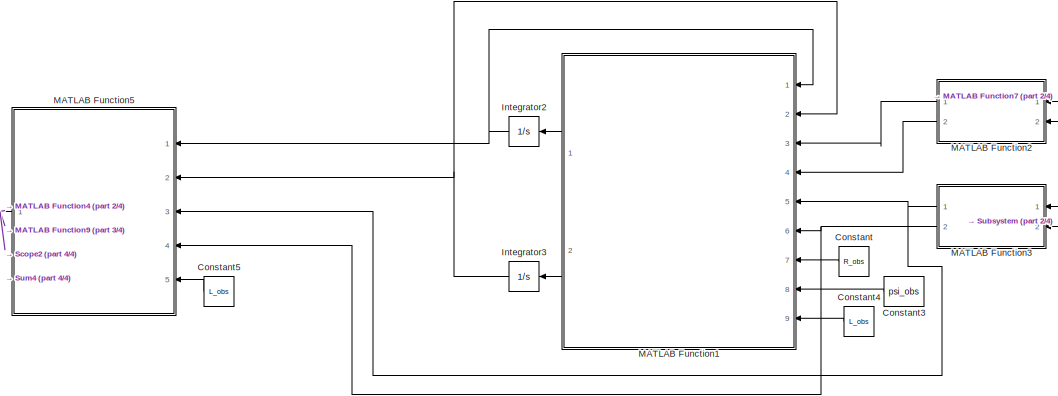
[diagram: root canvas - part 1/4, top center region]
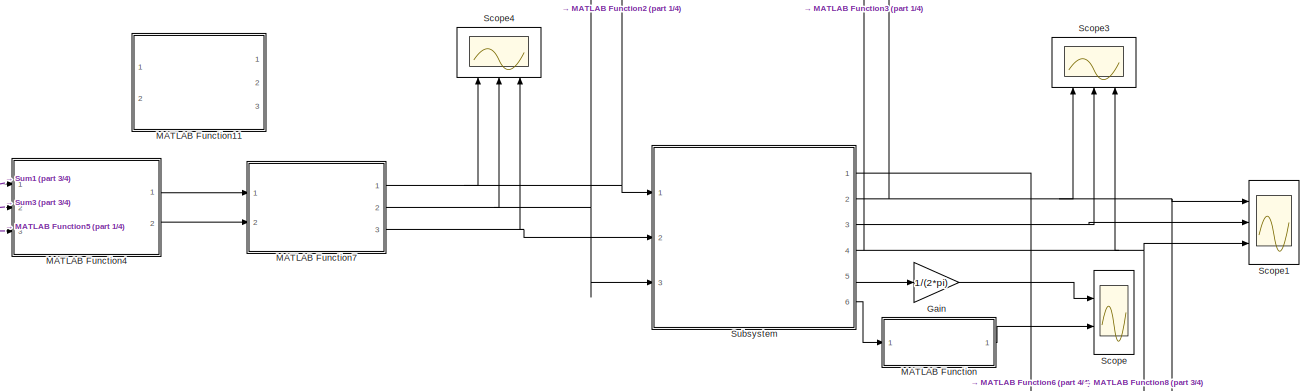
[diagram: root canvas - part 2/4, middle right region]
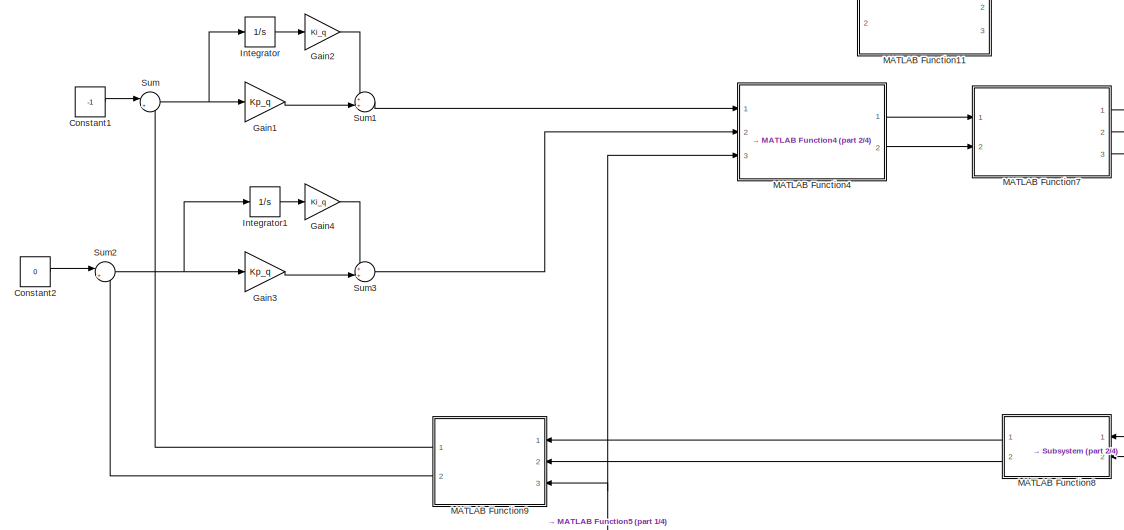
[diagram: root canvas - part 3/4, middle left region]
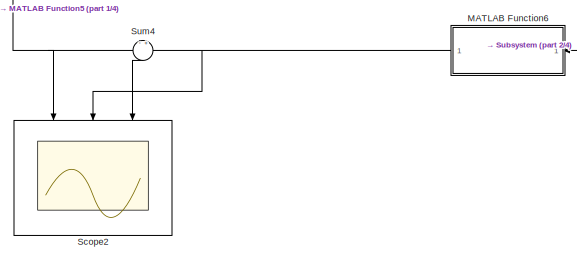
[diagram: root canvas - part 4/4, bottom center region]
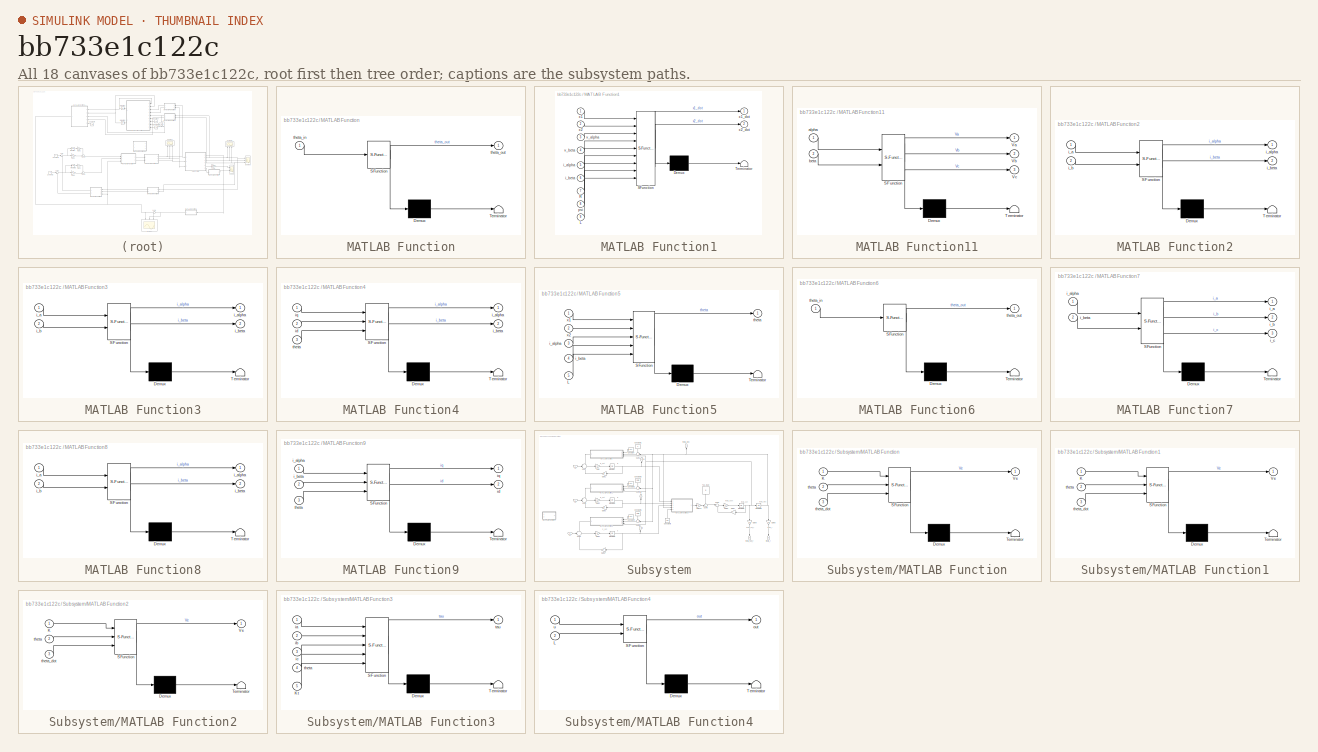
[diagram: thumbnail index - all 18 canvases of the model, root first then tree order]
MODEL slx_bb733e1c122c
KIND model
CONFIG AbsTol = auto
CONFIG FixedStep = auto
CONFIG MaxStep = auto
CONFIG MinStep = auto
CONFIG RelTol = 1e-3
CONFIG SampleTimeConstraint = Unconstrained
CONFIG Solver = VariableStepAuto
CONFIG SolverMode = Auto
CONFIG SolverName = VariableStepAuto
CONFIG StartTime = 0.0
CONFIG StopTime = 1
BLOCK [Constant] Constant
  Value = R_obs
BLOCK [Constant] Constant1
  Value = -1
BLOCK [Constant] Constant2
  Value = 0
BLOCK [Constant] Constant3
  Value = psi_obs
BLOCK [Constant] Constant4
  Value = L_obs
BLOCK [Constant] Constant5
  Value = L_obs
BLOCK [Gain] Gain
  Gain = 1/(2*pi)
  OutDataTypeStr = Inherit: Inherit via internal rule
  ParamDataTypeStr = Inherit: Inherit via internal rule
  SaturateOnIntegerOverflow = off
BLOCK [Gain] Gain1
  Gain = Kp_q
  OutDataTypeStr = Inherit: Inherit via internal rule
  ParamDataTypeStr = Inherit: Inherit via internal rule
  SaturateOnIntegerOverflow = off
BLOCK [Gain] Gain2
  Gain = Ki_q
  OutDataTypeStr = Inherit: Inherit via internal rule
  ParamDataTypeStr = Inherit: Inherit via internal rule
  SaturateOnIntegerOverflow = off
BLOCK [Gain] Gain3
  Gain = Kp_q
  OutDataTypeStr = Inherit: Inherit via internal rule
  ParamDataTypeStr = Inherit: Inherit via internal rule
  SaturateOnIntegerOverflow = off
BLOCK [Gain] Gain4
  Gain = Ki_q
  OutDataTypeStr = Inherit: Inherit via internal rule
  ParamDataTypeStr = Inherit: Inherit via internal rule
  SaturateOnIntegerOverflow = off
BLOCK [Integrator] Integrator
  Ports = [1, 1]
BLOCK [Integrator] Integrator1
  Ports = [1, 1]
BLOCK [Integrator] Integrator2
  Ports = [1, 1]
BLOCK [Integrator] Integrator3
  Ports = [1, 1]
BLOCK [SubSystem] MATLAB Function
  ErrorFcn = Stateflow.Translate.translate
  PermitHierarchicalResolution = ExplicitOnly
  Ports = [1, 1]
  RequestExecContextInheritance = off
  SFBlockType = MATLAB Function
  TreatAsAtomicUnit = on
  Variant = off
BLOCK [Demux] MATLAB Function/ Demux 
  Outputs = 1
  Ports = [1, 1]
BLOCK [S-Function] MATLAB Function/ SFunction 
  EnableBusSupport = on
  FunctionName = sf_sfun
  PortCounts = [1 2]
  Ports = [1, 2]
  SFunctionDeploymentMode = off
  Tag = Stateflow S-Function dynamic_sim_II 6
BLOCK [Terminator] MATLAB Function/ Terminator 
BLOCK [Inport] MATLAB Function/theta_in
  IconDisplay = Port number
BLOCK [Outport] MATLAB Function/theta_out
  IconDisplay = Port number
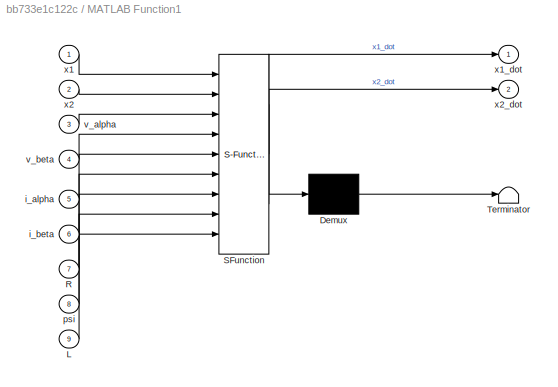
BLOCK [SubSystem] MATLAB Function1
  ErrorFcn = Stateflow.Translate.translate
  PermitHierarchicalResolution = ExplicitOnly
  Ports = [9, 2]
  RequestExecContextInheritance = off
  SFBlockType = MATLAB Function
  TreatAsAtomicUnit = on
  Variant = off
BLOCK [Demux] MATLAB Function1/ Demux 
  Outputs = 1
  Ports = [1, 1]
BLOCK [S-Function] MATLAB Function1/ SFunction 
  EnableBusSupport = on
  FunctionName = sf_sfun
  PortCounts = [9 3]
  Ports = [9, 3]
  SFunctionDeploymentMode = off
  Tag = Stateflow S-Function dynamic_sim_II 7
BLOCK [Terminator] MATLAB Function1/ Terminator 
BLOCK [Inport] MATLAB Function1/L
  IconDisplay = Port number
  Port = 9
BLOCK [Inport] MATLAB Function1/R
  IconDisplay = Port number
  Port = 7
BLOCK [Inport] MATLAB Function1/i_alpha
  IconDisplay = Port number
  Port = 5
BLOCK [Inport] MATLAB Function1/i_beta
  IconDisplay = Port number
  Port = 6
BLOCK [Inport] MATLAB Function1/psi
  IconDisplay = Port number
  Port = 8
BLOCK [Inport] MATLAB Function1/v_alpha
  IconDisplay = Port number
  Port = 3
BLOCK [Inport] MATLAB Function1/v_beta
  IconDisplay = Port number
  Port = 4
BLOCK [Inport] MATLAB Function1/x1
  IconDisplay = Port number
BLOCK [Outport] MATLAB Function1/x1_dot
  IconDisplay = Port number
BLOCK [Inport] MATLAB Function1/x2
  IconDisplay = Port number
  Port = 2
BLOCK [Outport] MATLAB Function1/x2_dot
  IconDisplay = Port number
  Port = 2
BLOCK [SubSystem] MATLAB Function11
  Commented = on
  ErrorFcn = Stateflow.Translate.translate
  PermitHierarchicalResolution = ExplicitOnly
  Ports = [2, 3]
  RequestExecContextInheritance = off
  SFBlockType = MATLAB Function
  TreatAsAtomicUnit = on
  Variant = off
BLOCK [Demux] MATLAB Function11/ Demux 
  Outputs = 1
  Ports = [1, 1]
BLOCK [S-Function] MATLAB Function11/ SFunction 
  EnableBusSupport = on
  FunctionName = sf_sfun
  PortCounts = [2 4]
  Ports = [2, 4]
  SFunctionDeploymentMode = off
  Tag = Stateflow S-Function dynamic_sim_II 16
BLOCK [Terminator] MATLAB Function11/ Terminator 
BLOCK [Outport] MATLAB Function11/Va
  IconDisplay = Port number
BLOCK [Outport] MATLAB Function11/Vb
  IconDisplay = Port number
  Port = 2
BLOCK [Outport] MATLAB Function11/Vc
  IconDisplay = Port number
  Port = 3
BLOCK [Inport] MATLAB Function11/alpha
  IconDisplay = Port number
BLOCK [Inport] MATLAB Function11/beta
  IconDisplay = Port number
  Port = 2
BLOCK [SubSystem] MATLAB Function2
  ErrorFcn = Stateflow.Translate.translate
  PermitHierarchicalResolution = ExplicitOnly
  Ports = [2, 2]
  RequestExecContextInheritance = off
  SFBlockType = MATLAB Function
  TreatAsAtomicUnit = on
  Variant = off
BLOCK [Demux] MATLAB Function2/ Demux 
  Outputs = 1
  Ports = [1, 1]
BLOCK [S-Function] MATLAB Function2/ SFunction 
  EnableBusSupport = on
  FunctionName = sf_sfun
  PortCounts = [2 3]
  Ports = [2, 3]
  SFunctionDeploymentMode = off
  Tag = Stateflow S-Function dynamic_sim_II 11
BLOCK [Terminator] MATLAB Function2/ Terminator 
BLOCK [Inport] MATLAB Function2/i_a
  IconDisplay = Port number
BLOCK [Outport] MATLAB Function2/i_alpha
  IconDisplay = Port number
BLOCK [Inport] MATLAB Function2/i_b
  IconDisplay = Port number
  Port = 2
BLOCK [Outport] MATLAB Function2/i_beta
  IconDisplay = Port number
  Port = 2
BLOCK [SubSystem] MATLAB Function3
  ErrorFcn = Stateflow.Translate.translate
  PermitHierarchicalResolution = ExplicitOnly
  Ports = [2, 2]
  RequestExecContextInheritance = off
  SFBlockType = MATLAB Function
  TreatAsAtomicUnit = on
  Variant = off
BLOCK [Demux] MATLAB Function3/ Demux 
  Outputs = 1
  Ports = [1, 1]
BLOCK [S-Function] MATLAB Function3/ SFunction 
  EnableBusSupport = on
  FunctionName = sf_sfun
  PortCounts = [2 3]
  Ports = [2, 3]
  SFunctionDeploymentMode = off
  Tag = Stateflow S-Function dynamic_sim_II 12
BLOCK [Terminator] MATLAB Function3/ Terminator 
BLOCK [Inport] MATLAB Function3/i_a
  IconDisplay = Port number
BLOCK [Outport] MATLAB Function3/i_alpha
  IconDisplay = Port number
BLOCK [Inport] MATLAB Function3/i_b
  IconDisplay = Port number
  Port = 2
BLOCK [Outport] MATLAB Function3/i_beta
  IconDisplay = Port number
  Port = 2
BLOCK [SubSystem] MATLAB Function4
  ErrorFcn = Stateflow.Translate.translate
  PermitHierarchicalResolution = ExplicitOnly
  Ports = [3, 2]
  RequestExecContextInheritance = off
  SFBlockType = MATLAB Function
  TreatAsAtomicUnit = on
  Variant = off
BLOCK [Demux] MATLAB Function4/ Demux 
  Outputs = 1
  Ports = [1, 1]
BLOCK [S-Function] MATLAB Function4/ SFunction 
  EnableBusSupport = on
  FunctionName = sf_sfun
  PortCounts = [3 3]
  Ports = [3, 3]
  SFunctionDeploymentMode = off
  Tag = Stateflow S-Function dynamic_sim_II 5
BLOCK [Terminator] MATLAB Function4/ Terminator 
BLOCK [Outport] MATLAB Function4/i_alpha
  IconDisplay = Port number
BLOCK [Outport] MATLAB Function4/i_beta
  IconDisplay = Port number
  Port = 2
BLOCK [Inport] MATLAB Function4/id
  IconDisplay = Port number
  Port = 2
BLOCK [Inport] MATLAB Function4/iq
  IconDisplay = Port number
BLOCK [Inport] MATLAB Function4/theta
  IconDisplay = Port number
  Port = 3
BLOCK [SubSystem] MATLAB Function5
  ErrorFcn = Stateflow.Translate.translate
  PermitHierarchicalResolution = ExplicitOnly
  Ports = [5, 1]
  RequestExecContextInheritance = off
  SFBlockType = MATLAB Function
  TreatAsAtomicUnit = on
  Variant = off
BLOCK [Demux] MATLAB Function5/ Demux 
  Outputs = 1
  Ports = [1, 1]
BLOCK [S-Function] MATLAB Function5/ SFunction 
  EnableBusSupport = on
  FunctionName = sf_sfun
  PortCounts = [5 2]
  Ports = [5, 2]
  SFunctionDeploymentMode = off
  Tag = Stateflow S-Function dynamic_sim_II 13
BLOCK [Terminator] MATLAB Function5/ Terminator 
BLOCK [Inport] MATLAB Function5/L
  IconDisplay = Port number
  Port = 5
BLOCK [Inport] MATLAB Function5/i_alpha
  IconDisplay = Port number
  Port = 3
BLOCK [Inport] MATLAB Function5/i_beta
  IconDisplay = Port number
  Port = 4
BLOCK [Outport] MATLAB Function5/theta
  IconDisplay = Port number
BLOCK [Inport] MATLAB Function5/x1
  IconDisplay = Port number
BLOCK [Inport] MATLAB Function5/x2
  IconDisplay = Port number
  Port = 2
BLOCK [SubSystem] MATLAB Function6
  ErrorFcn = Stateflow.Translate.translate
  PermitHierarchicalResolution = ExplicitOnly
  Ports = [1, 1]
  RequestExecContextInheritance = off
  SFBlockType = MATLAB Function
  TreatAsAtomicUnit = on
  Variant = off
BLOCK [Demux] MATLAB Function6/ Demux 
  Outputs = 1
  Ports = [1, 1]
BLOCK [S-Function] MATLAB Function6/ SFunction 
  EnableBusSupport = on
  FunctionName = sf_sfun
  PortCounts = [1 2]
  Ports = [1, 2]
  SFunctionDeploymentMode = off
  Tag = Stateflow S-Function dynamic_sim_II 14
BLOCK [Terminator] MATLAB Function6/ Terminator 
BLOCK [Inport] MATLAB Function6/theta_in
  IconDisplay = Port number
BLOCK [Outport] MATLAB Function6/theta_out
  IconDisplay = Port number
BLOCK [SubSystem] MATLAB Function7
  ErrorFcn = Stateflow.Translate.translate
  PermitHierarchicalResolution = ExplicitOnly
  Ports = [2, 3]
  RequestExecContextInheritance = off
  SFBlockType = MATLAB Function
  TreatAsAtomicUnit = on
  Variant = off
BLOCK [Demux] MATLAB Function7/ Demux 
  Outputs = 1
  Ports = [1, 1]
BLOCK [S-Function] MATLAB Function7/ SFunction 
  EnableBusSupport = on
  FunctionName = sf_sfun
  PortCounts = [2 4]
  Ports = [2, 4]
  SFunctionDeploymentMode = off
  Tag = Stateflow S-Function dynamic_sim_II 8
BLOCK [Terminator] MATLAB Function7/ Terminator 
BLOCK [Outport] MATLAB Function7/i_a
  IconDisplay = Port number
BLOCK [Inport] MATLAB Function7/i_alpha
  IconDisplay = Port number
BLOCK [Outport] MATLAB Function7/i_b
  IconDisplay = Port number
  Port = 2
BLOCK [Inport] MATLAB Function7/i_beta
  IconDisplay = Port number
  Port = 2
BLOCK [Outport] MATLAB Function7/i_c
  IconDisplay = Port number
  Port = 3
BLOCK [SubSystem] MATLAB Function8
  ErrorFcn = Stateflow.Translate.translate
  PermitHierarchicalResolution = ExplicitOnly
  Ports = [2, 2]
  RequestExecContextInheritance = off
  SFBlockType = MATLAB Function
  TreatAsAtomicUnit = on
  Variant = off
BLOCK [Demux] MATLAB Function8/ Demux 
  Outputs = 1
  Ports = [1, 1]
BLOCK [S-Function] MATLAB Function8/ SFunction 
  EnableBusSupport = on
  FunctionName = sf_sfun
  PortCounts = [2 3]
  Ports = [2, 3]
  SFunctionDeploymentMode = off
  Tag = Stateflow S-Function dynamic_sim_II 9
BLOCK [Terminator] MATLAB Function8/ Terminator 
BLOCK [Inport] MATLAB Function8/i_a
  IconDisplay = Port number
BLOCK [Outport] MATLAB Function8/i_alpha
  IconDisplay = Port number
BLOCK [Inport] MATLAB Function8/i_b
  IconDisplay = Port number
  Port = 2
BLOCK [Outport] MATLAB Function8/i_beta
  IconDisplay = Port number
  Port = 2
BLOCK [SubSystem] MATLAB Function9
  ErrorFcn = Stateflow.Translate.translate
  PermitHierarchicalResolution = ExplicitOnly
  Ports = [3, 2]
  RequestExecContextInheritance = off
  SFBlockType = MATLAB Function
  TreatAsAtomicUnit = on
  Variant = off
BLOCK [Demux] MATLAB Function9/ Demux 
  Outputs = 1
  Ports = [1, 1]
BLOCK [S-Function] MATLAB Function9/ SFunction 
  EnableBusSupport = on
  FunctionName = sf_sfun
  PortCounts = [3 3]
  Ports = [3, 3]
  SFunctionDeploymentMode = off
  Tag = Stateflow S-Function dynamic_sim_II 10
BLOCK [Terminator] MATLAB Function9/ Terminator 
BLOCK [Inport] MATLAB Function9/i_alpha
  IconDisplay = Port number
BLOCK [Inport] MATLAB Function9/i_beta
  IconDisplay = Port number
  Port = 2
BLOCK [Outport] MATLAB Function9/id
  IconDisplay = Port number
  Port = 2
BLOCK [Outport] MATLAB Function9/iq
  IconDisplay = Port number
BLOCK [Inport] MATLAB Function9/theta
  IconDisplay = Port number
  Port = 3
BLOCK [Scope] Scope
  NumInputPorts = 2
  Ports = [2]
  ScopeSpecificationString = Simulink.scopes.TimeScopeBlockCfg('CurrentConfiguration', extmgr.ConfigurationSet(extmgr.Configuration('Core','General UI',true),extmgr.Configuration('Core','Source UI',true),extmgr.Configuration('Sources','WiredSimulink',true),extmgr.Configuration('Visuals','Time Domain',true,'SerializedDisplays',{struct('MinYLimReal','-1003.5179','MaxYLimReal','1842.5715','YLabelReal','','MinYLimMag','  0.00000'...<+1465ch>
BLOCK [Scope] Scope1
  NumInputPorts = 3
  Ports = [3]
  ScopeSpecificationString = Simulink.scopes.TimeScopeBlockCfg('CurrentConfiguration', extmgr.ConfigurationSet(extmgr.Configuration('Core','General UI',true),extmgr.Configuration('Core','Source UI',true),extmgr.Configuration('Sources','WiredSimulink',true,'DataLoggingVariableName','ScopeData1'),extmgr.Configuration('Visuals','Time Domain',true,'SerializedDisplays',{struct('MinYLimReal','-5.67931','MaxYLimReal','5.52953','YLab...<+1476ch>
BLOCK [Scope] Scope2
  NumInputPorts = 3
  Ports = [3]
  ScopeSpecificationString = Simulink.scopes.TimeScopeBlockCfg('CurrentConfiguration', extmgr.ConfigurationSet(extmgr.Configuration('Core','General UI',true),extmgr.Configuration('Core','Source UI',true),extmgr.Configuration('Sources','WiredSimulink',true,'DataLoggingVariableName','ScopeData2'),extmgr.Configuration('Visuals','Time Domain',true,'SerializedDisplays',{struct('MinYLimReal','-4.47606','MaxYLimReal','3.61394','YLab...<+1508ch>
BLOCK [Scope] Scope3
  NumInputPorts = 3
  Ports = [3]
  ScopeSpecificationString = Simulink.scopes.TimeScopeBlockCfg('CurrentConfiguration', extmgr.ConfigurationSet(extmgr.Configuration('Core','General UI',true),extmgr.Configuration('Core','Source UI',true),extmgr.Configuration('Sources','WiredSimulink',true,'DataLoggingVariableName','ScopeData1'),extmgr.Configuration('Visuals','Time Domain',true,'SerializedDisplays',{struct('MinYLimReal','-1.26065','MaxYLimReal','7.53281','YLab...<+1470ch>
BLOCK [Scope] Scope4
  NumInputPorts = 3
  Ports = [3]
  ScopeSpecificationString = Simulink.scopes.TimeScopeBlockCfg('CurrentConfiguration', extmgr.ConfigurationSet(extmgr.Configuration('Core','General UI',true),extmgr.Configuration('Core','Source UI',true),extmgr.Configuration('Sources','WiredSimulink',true,'DataLoggingVariableName','ScopeData2'),extmgr.Configuration('Visuals','Time Domain',true,'SerializedDisplays',{struct('MinYLimReal','-1.37841','MaxYLimReal','9.04704','YLab...<+1524ch>
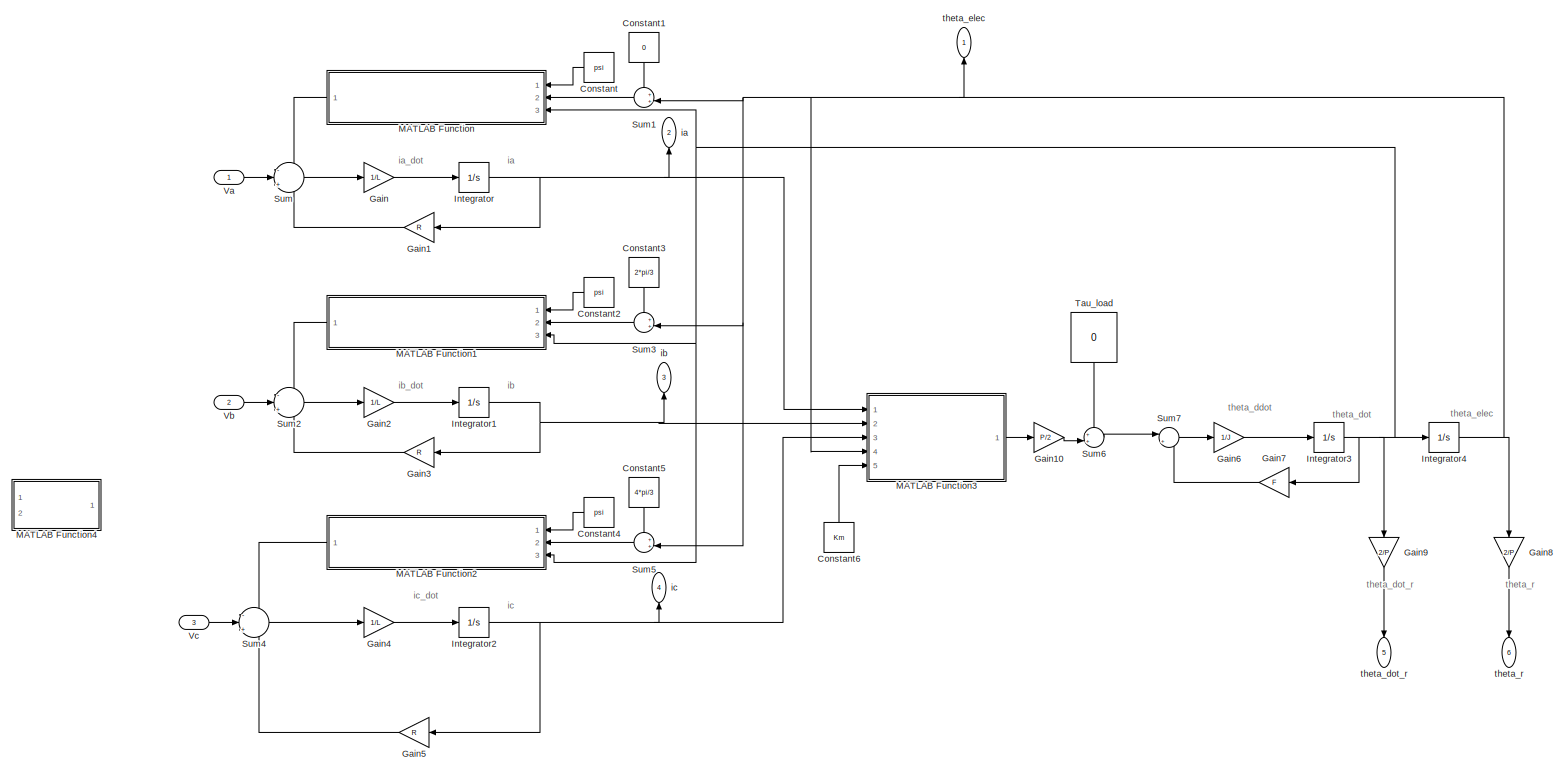
[diagram: Subsystem - part 1/1, most of the canvas]
BLOCK [SubSystem] Subsystem
  Ports = [3, 6]
  RequestExecContextInheritance = off
  Variant = off
BLOCK [Outport] Subsystem/ theta_elec 
  IconDisplay = Port number
BLOCK [Constant] Subsystem/Constant
  Value = psi
BLOCK [Constant] Subsystem/Constant1
  Value = 0
BLOCK [Constant] Subsystem/Constant2
  Value = psi
BLOCK [Constant] Subsystem/Constant3
  Value = 2*pi/3
BLOCK [Constant] Subsystem/Constant4
  Value = psi
BLOCK [Constant] Subsystem/Constant5
  Value = 4*pi/3
BLOCK [Constant] Subsystem/Constant6
  Value = Km
BLOCK [Gain] Subsystem/Gain
  Gain = 1/L
  OutDataTypeStr = Inherit: Inherit via internal rule
  ParamDataTypeStr = Inherit: Inherit via internal rule
  SaturateOnIntegerOverflow = off
BLOCK [Gain] Subsystem/Gain1
  Gain = R
  OutDataTypeStr = Inherit: Inherit via internal rule
  ParamDataTypeStr = Inherit: Inherit via internal rule
  SaturateOnIntegerOverflow = off
BLOCK [Gain] Subsystem/Gain10
  Gain = P/2
  OutDataTypeStr = Inherit: Inherit via internal rule
  ParamDataTypeStr = Inherit: Inherit via internal rule
  SaturateOnIntegerOverflow = off
BLOCK [Gain] Subsystem/Gain2
  Gain = 1/L
  OutDataTypeStr = Inherit: Inherit via internal rule
  ParamDataTypeStr = Inherit: Inherit via internal rule
  SaturateOnIntegerOverflow = off
BLOCK [Gain] Subsystem/Gain3
  Gain = R
  OutDataTypeStr = Inherit: Inherit via internal rule
  ParamDataTypeStr = Inherit: Inherit via internal rule
  SaturateOnIntegerOverflow = off
BLOCK [Gain] Subsystem/Gain4
  Gain = 1/L
  OutDataTypeStr = Inherit: Inherit via internal rule
  ParamDataTypeStr = Inherit: Inherit via internal rule
  SaturateOnIntegerOverflow = off
BLOCK [Gain] Subsystem/Gain5
  Gain = R
  OutDataTypeStr = Inherit: Inherit via internal rule
  ParamDataTypeStr = Inherit: Inherit via internal rule
  SaturateOnIntegerOverflow = off
BLOCK [Gain] Subsystem/Gain6
  Gain = 1/J
  OutDataTypeStr = Inherit: Inherit via internal rule
  ParamDataTypeStr = Inherit: Inherit via internal rule
  SaturateOnIntegerOverflow = off
BLOCK [Gain] Subsystem/Gain7
  Gain = F
  OutDataTypeStr = Inherit: Inherit via internal rule
  ParamDataTypeStr = Inherit: Inherit via internal rule
  SaturateOnIntegerOverflow = off
BLOCK [Gain] Subsystem/Gain8
  Gain = 2/P
  OutDataTypeStr = Inherit: Inherit via internal rule
  ParamDataTypeStr = Inherit: Inherit via internal rule
  SaturateOnIntegerOverflow = off
BLOCK [Gain] Subsystem/Gain9
  Gain = 2/P
  OutDataTypeStr = Inherit: Inherit via internal rule
  ParamDataTypeStr = Inherit: Inherit via internal rule
  SaturateOnIntegerOverflow = off
BLOCK [Integrator] Subsystem/Integrator
  Ports = [1, 1]
BLOCK [Integrator] Subsystem/Integrator1
  Ports = [1, 1]
BLOCK [Integrator] Subsystem/Integrator2
  Ports = [1, 1]
BLOCK [Integrator] Subsystem/Integrator3
  Ports = [1, 1]
BLOCK [Integrator] Subsystem/Integrator4
  Ports = [1, 1]
BLOCK [SubSystem] Subsystem/MATLAB Function
  ErrorFcn = Stateflow.Translate.translate
  PermitHierarchicalResolution = ExplicitOnly
  Ports = [3, 1]
  RequestExecContextInheritance = off
  SFBlockType = MATLAB Function
  TreatAsAtomicUnit = on
  Variant = off
BLOCK [Demux] Subsystem/MATLAB Function/ Demux 
  Outputs = 1
  Ports = [1, 1]
BLOCK [S-Function] Subsystem/MATLAB Function/ SFunction 
  EnableBusSupport = on
  FunctionName = sf_sfun
  PortCounts = [3 2]
  Ports = [3, 2]
  SFunctionDeploymentMode = off
  Tag = Stateflow S-Function dynamic_sim_II 2
BLOCK [Terminator] Subsystem/MATLAB Function/ Terminator 
BLOCK [Inport] Subsystem/MATLAB Function/K
  IconDisplay = Port number
BLOCK [Outport] Subsystem/MATLAB Function/Ve
  IconDisplay = Port number
BLOCK [Inport] Subsystem/MATLAB Function/theta
  IconDisplay = Port number
  Port = 2
BLOCK [Inport] Subsystem/MATLAB Function/theta_dot
  IconDisplay = Port number
  Port = 3
BLOCK [SubSystem] Subsystem/MATLAB Function1
  ErrorFcn = Stateflow.Translate.translate
  PermitHierarchicalResolution = ExplicitOnly
  Ports = [3, 1]
  RequestExecContextInheritance = off
  SFBlockType = MATLAB Function
  TreatAsAtomicUnit = on
  Variant = off
BLOCK [Demux] Subsystem/MATLAB Function1/ Demux 
  Outputs = 1
  Ports = [1, 1]
BLOCK [S-Function] Subsystem/MATLAB Function1/ SFunction 
  EnableBusSupport = on
  FunctionName = sf_sfun
  PortCounts = [3 2]
  Ports = [3, 2]
  SFunctionDeploymentMode = off
  Tag = Stateflow S-Function dynamic_sim_II 1
BLOCK [Terminator] Subsystem/MATLAB Function1/ Terminator 
BLOCK [Inport] Subsystem/MATLAB Function1/K
  IconDisplay = Port number
BLOCK [Outport] Subsystem/MATLAB Function1/Ve
  IconDisplay = Port number
BLOCK [Inport] Subsystem/MATLAB Function1/theta
  IconDisplay = Port number
  Port = 2
BLOCK [Inport] Subsystem/MATLAB Function1/theta_dot
  IconDisplay = Port number
  Port = 3
BLOCK [SubSystem] Subsystem/MATLAB Function2
  ErrorFcn = Stateflow.Translate.translate
  PermitHierarchicalResolution = ExplicitOnly
  Ports = [3, 1]
  RequestExecContextInheritance = off
  SFBlockType = MATLAB Function
  TreatAsAtomicUnit = on
  Variant = off
BLOCK [Demux] Subsystem/MATLAB Function2/ Demux 
  Outputs = 1
  Ports = [1, 1]
BLOCK [S-Function] Subsystem/MATLAB Function2/ SFunction 
  EnableBusSupport = on
  FunctionName = sf_sfun
  PortCounts = [3 2]
  Ports = [3, 2]
  SFunctionDeploymentMode = off
  Tag = Stateflow S-Function dynamic_sim_II 3
BLOCK [Terminator] Subsystem/MATLAB Function2/ Terminator 
BLOCK [Inport] Subsystem/MATLAB Function2/K
  IconDisplay = Port number
BLOCK [Outport] Subsystem/MATLAB Function2/Ve
  IconDisplay = Port number
BLOCK [Inport] Subsystem/MATLAB Function2/theta
  IconDisplay = Port number
  Port = 2
BLOCK [Inport] Subsystem/MATLAB Function2/theta_dot
  IconDisplay = Port number
  Port = 3
BLOCK [SubSystem] Subsystem/MATLAB Function3
  ErrorFcn = Stateflow.Translate.translate
  PermitHierarchicalResolution = ExplicitOnly
  Ports = [5, 1]
  RequestExecContextInheritance = off
  SFBlockType = MATLAB Function
  TreatAsAtomicUnit = on
  Variant = off
BLOCK [Demux] Subsystem/MATLAB Function3/ Demux 
  Outputs = 1
  Ports = [1, 1]
BLOCK [S-Function] Subsystem/MATLAB Function3/ SFunction 
  EnableBusSupport = on
  FunctionName = sf_sfun
  PortCounts = [5 2]
  Ports = [5, 2]
  SFunctionDeploymentMode = off
  Tag = Stateflow S-Function dynamic_sim_II 4
BLOCK [Terminator] Subsystem/MATLAB Function3/ Terminator 
BLOCK [Inport] Subsystem/MATLAB Function3/Kt
  IconDisplay = Port number
  Port = 5
BLOCK [Inport] Subsystem/MATLAB Function3/ia
  IconDisplay = Port number
BLOCK [Inport] Subsystem/MATLAB Function3/ib
  IconDisplay = Port number
  Port = 2
BLOCK [Inport] Subsystem/MATLAB Function3/ic
  IconDisplay = Port number
  Port = 3
BLOCK [Outport] Subsystem/MATLAB Function3/tau
  IconDisplay = Port number
BLOCK [Inport] Subsystem/MATLAB Function3/theta
  IconDisplay = Port number
  Port = 4
BLOCK [SubSystem] Subsystem/MATLAB Function4
  Commented = on
  ErrorFcn = Stateflow.Translate.translate
  PermitHierarchicalResolution = ExplicitOnly
  Ports = [2, 1]
  RequestExecContextInheritance = off
  SFBlockType = MATLAB Function
  TreatAsAtomicUnit = on
  Variant = off
BLOCK [Demux] Subsystem/MATLAB Function4/ Demux 
  Outputs = 1
  Ports = [1, 1]
BLOCK [S-Function] Subsystem/MATLAB Function4/ SFunction 
  EnableBusSupport = on
  FunctionName = sf_sfun
  PortCounts = [2 2]
  Ports = [2, 2]
  SFunctionDeploymentMode = off
  Tag = Stateflow S-Function dynamic_sim_II 15
BLOCK [Terminator] Subsystem/MATLAB Function4/ Terminator 
BLOCK [Inport] Subsystem/MATLAB Function4/L
  IconDisplay = Port number
  Port = 2
BLOCK [Outport] Subsystem/MATLAB Function4/out
  IconDisplay = Port number
BLOCK [Inport] Subsystem/MATLAB Function4/u
  IconDisplay = Port number
BLOCK [Sum] Subsystem/Sum
  IconShape = round
  InputSameDT = off
  Inputs = -|+|-
  OutDataTypeStr = Inherit: Inherit via internal rule
  Ports = [3, 1]
  SaturateOnIntegerOverflow = off
BLOCK [Sum] Subsystem/Sum1
  IconShape = round
  InputSameDT = off
  Inputs = ++|
  OutDataTypeStr = Inherit: Inherit via internal rule
  Ports = [2, 1]
  SaturateOnIntegerOverflow = off
BLOCK [Sum] Subsystem/Sum2
  IconShape = round
  InputSameDT = off
  Inputs = -|+|-
  OutDataTypeStr = Inherit: Inherit via internal rule
  Ports = [3, 1]
  SaturateOnIntegerOverflow = off
BLOCK [Sum] Subsystem/Sum3
  IconShape = round
  InputSameDT = off
  Inputs = ++|
  OutDataTypeStr = Inherit: Inherit via internal rule
  Ports = [2, 1]
  SaturateOnIntegerOverflow = off
BLOCK [Sum] Subsystem/Sum4
  IconShape = round
  InputSameDT = off
  Inputs = -|+|-
  OutDataTypeStr = Inherit: Inherit via internal rule
  Ports = [3, 1]
  SaturateOnIntegerOverflow = off
BLOCK [Sum] Subsystem/Sum5
  IconShape = round
  InputSameDT = off
  Inputs = ++|
  OutDataTypeStr = Inherit: Inherit via internal rule
  Ports = [2, 1]
  SaturateOnIntegerOverflow = off
BLOCK [Sum] Subsystem/Sum6
  IconShape = round
  InputSameDT = off
  Inputs = ++|
  OutDataTypeStr = Inherit: Inherit via internal rule
  Ports = [2, 1]
  SaturateOnIntegerOverflow = off
BLOCK [Sum] Subsystem/Sum7
  IconShape = round
  InputSameDT = off
  Inputs = |+-
  OutDataTypeStr = Inherit: Inherit via internal rule
  Ports = [2, 1]
  SaturateOnIntegerOverflow = off
BLOCK [Constant] Subsystem/Tau_load
  Value = 0
BLOCK [Inport] Subsystem/Va 
  IconDisplay = Port number
BLOCK [Inport] Subsystem/Vb
  IconDisplay = Port number
  Port = 2
BLOCK [Inport] Subsystem/Vc
  IconDisplay = Port number
  Port = 3
BLOCK [Outport] Subsystem/ia
  IconDisplay = Port number
  Port = 2
BLOCK [Outport] Subsystem/ib
  IconDisplay = Port number
  Port = 3
BLOCK [Outport] Subsystem/ic
  IconDisplay = Port number
  Port = 4
BLOCK [Outport] Subsystem/theta_dot_r
  IconDisplay = Port number
  Port = 5
BLOCK [Outport] Subsystem/theta_r
  IconDisplay = Port number
  Port = 6
BLOCK [Sum] Sum
  IconShape = round
  InputSameDT = off
  Inputs = |+-
  OutDataTypeStr = Inherit: Inherit via internal rule
  Ports = [2, 1]
  SaturateOnIntegerOverflow = off
BLOCK [Sum] Sum1
  IconShape = round
  InputSameDT = off
  Inputs = ++|
  OutDataTypeStr = Inherit: Inherit via internal rule
  Ports = [2, 1]
  SaturateOnIntegerOverflow = off
BLOCK [Sum] Sum2
  IconShape = round
  InputSameDT = off
  Inputs = |+-
  OutDataTypeStr = Inherit: Inherit via internal rule
  Ports = [2, 1]
  SaturateOnIntegerOverflow = off
BLOCK [Sum] Sum3
  IconShape = round
  InputSameDT = off
  Inputs = ++|
  OutDataTypeStr = Inherit: Inherit via internal rule
  Ports = [2, 1]
  SaturateOnIntegerOverflow = off
BLOCK [Sum] Sum4
  IconShape = round
  InputSameDT = off
  Inputs = -+
  OutDataTypeStr = Inherit: Inherit via internal rule
  Ports = [2, 1]
  SaturateOnIntegerOverflow = off
ANNOTATION Subsystem: ia
ANNOTATION Subsystem: ia_dot
ANNOTATION Subsystem: ib
ANNOTATION Subsystem: ib_dot
ANNOTATION Subsystem: ic
ANNOTATION Subsystem: ic_dot
ANNOTATION Subsystem: theta_ddot
ANNOTATION Subsystem: theta_dot
ANNOTATION Subsystem: theta_dot_r
ANNOTATION Subsystem: theta_elec
ANNOTATION Subsystem: theta_r
LINE Constant1:1 -> Sum:1
LINE Constant2:1 -> Sum2:1
LINE Constant3:1 -> MATLAB Function1:8
LINE Constant4:1 -> MATLAB Function1:9
LINE Constant5:1 -> MATLAB Function5:5
LINE Constant:1 -> MATLAB Function1:7
LINE Gain1:1 -> Sum1:2
LINE Gain2:1 -> Sum1:1
LINE Gain3:1 -> Sum3:2
LINE Gain4:1 -> Sum3:1
LINE Gain:1 -> Scope:1
LINE Integrator1:1 -> Gain4:1
NET Integrator2:1 -> MATLAB Function1:1, MATLAB Function5:1
NET Integrator3:1 -> MATLAB Function1:2, MATLAB Function5:2
LINE Integrator:1 -> Gain2:1
LINE MATLAB Function1:1 -> Integrator2:1
LINE MATLAB Function1:2 -> Integrator3:1
LINE MATLAB Function2:1 -> MATLAB Function1:3
LINE MATLAB Function2:2 -> MATLAB Function1:4
NET MATLAB Function3:1 -> MATLAB Function1:5, MATLAB Function5:3
NET MATLAB Function3:2 -> MATLAB Function1:6, MATLAB Function5:4
LINE MATLAB Function4:1 -> MATLAB Function7:1
LINE MATLAB Function4:2 -> MATLAB Function7:2
NET MATLAB Function5:1 -> MATLAB Function4:3, MATLAB Function9:3, Scope2:1, Sum4:1
NET MATLAB Function6:1 -> Scope2:2, Sum4:2
NET MATLAB Function7:1 -> MATLAB Function2:1, Scope4:1, Subsystem:1
NET MATLAB Function7:2 -> MATLAB Function2:2, Scope4:2, Subsystem:3
NET MATLAB Function7:3 -> Scope4:3, Subsystem:2
LINE MATLAB Function8:1 -> MATLAB Function9:1
LINE MATLAB Function8:2 -> MATLAB Function9:2
LINE MATLAB Function9:1 -> Sum:2
LINE MATLAB Function9:2 -> Sum2:2
LINE MATLAB Function:1 -> Scope:2
LINE Subsystem/Constant1:1 -> Subsystem/Sum1:1
LINE Subsystem/Constant2:1 -> Subsystem/MATLAB Function1:1
LINE Subsystem/Constant3:1 -> Subsystem/Sum3:1
LINE Subsystem/Constant4:1 -> Subsystem/MATLAB Function2:1
LINE Subsystem/Constant5:1 -> Subsystem/Sum5:1
LINE Subsystem/Constant6:1 -> Subsystem/MATLAB Function3:5
LINE Subsystem/Constant:1 -> Subsystem/MATLAB Function:1
LINE Subsystem/Gain10:1 -> Subsystem/Sum6:2
LINE Subsystem/Gain1:1 -> Subsystem/Sum:3
LINE Subsystem/Gain2:1 -> Subsystem/Integrator1:1
LINE Subsystem/Gain3:1 -> Subsystem/Sum2:3
LINE Subsystem/Gain4:1 -> Subsystem/Integrator2:1
LINE Subsystem/Gain5:1 -> Subsystem/Sum4:3
LINE Subsystem/Gain6:1 -> Subsystem/Integrator3:1
LINE Subsystem/Gain7:1 -> Subsystem/Sum7:2
LINE Subsystem/Gain8:1 -> Subsystem/theta_r:1
LINE Subsystem/Gain9:1 -> Subsystem/theta_dot_r:1
LINE Subsystem/Gain:1 -> Subsystem/Integrator:1
NET Subsystem/Integrator1:1 -> Subsystem/Gain3:1, Subsystem/MATLAB Function3:2, Subsystem/ib:1
NET Subsystem/Integrator2:1 -> Subsystem/Gain5:1, Subsystem/MATLAB Function3:3, Subsystem/ic:1
NET Subsystem/Integrator3:1 -> Subsystem/Gain7:1, Subsystem/Gain9:1, Subsystem/Integrator4:1, Subsystem/MATLAB Function1:3, Subsystem/MATLAB Function2:3, Subsystem/MATLAB Function:3
NET Subsystem/Integrator4:1 -> Subsystem/ theta_elec :1, Subsystem/Gain8:1, Subsystem/MATLAB Function3:4, Subsystem/Sum1:2, Subsystem/Sum3:2, Subsystem/Sum5:2
NET Subsystem/Integrator:1 -> Subsystem/Gain1:1, Subsystem/MATLAB Function3:1, Subsystem/ia:1
LINE Subsystem/MATLAB Function1:1 -> Subsystem/Sum2:1
LINE Subsystem/MATLAB Function2:1 -> Subsystem/Sum4:1
LINE Subsystem/MATLAB Function3:1 -> Subsystem/Gain10:1
LINE Subsystem/MATLAB Function:1 -> Subsystem/Sum:1
LINE Subsystem/Sum1:1 -> Subsystem/MATLAB Function:2
LINE Subsystem/Sum2:1 -> Subsystem/Gain2:1
LINE Subsystem/Sum3:1 -> Subsystem/MATLAB Function1:2
LINE Subsystem/Sum4:1 -> Subsystem/Gain4:1
LINE Subsystem/Sum5:1 -> Subsystem/MATLAB Function2:2
LINE Subsystem/Sum6:1 -> Subsystem/Sum7:1
LINE Subsystem/Sum7:1 -> Subsystem/Gain6:1
LINE Subsystem/Sum:1 -> Subsystem/Gain:1
LINE Subsystem/Tau_load:1 -> Subsystem/Sum6:1
LINE Subsystem/Va :1 -> Subsystem/Sum:2
LINE Subsystem/Vb:1 -> Subsystem/Sum2:2
LINE Subsystem/Vc:1 -> Subsystem/Sum4:2
LINE Subsystem:1 -> MATLAB Function6:1
NET Subsystem:2 -> MATLAB Function3:1, MATLAB Function8:1, Scope1:1, Scope3:1
NET Subsystem:3 -> Scope1:2, Scope3:2
NET Subsystem:4 -> MATLAB Function3:2, MATLAB Function8:2, Scope1:3, Scope3:3
LINE Subsystem:5 -> Gain:1
LINE Subsystem:6 -> MATLAB Function:1
LINE Sum1:1 -> MATLAB Function4:1
NET Sum2:1 -> Gain3:1, Integrator1:1
LINE Sum3:1 -> MATLAB Function4:2
LINE Sum4:1 -> Scope2:3
NET Sum:1 -> Gain1:1, Integrator:1
note: NET lines group one-source signal fan-out (src -> all destinations, sorted); 1:1 wires keep LINE
CHART Subsystem/MATLAB Function1 states=1 transitions=1
  STATE_LABEL 'eML_blk_kernel()'
  STATE_LABEL 'SCRIPT:\nfunction Ve = emf(K,theta,theta_dot)\n%#codegen\nVe = K*sin(theta)*theta_dot;\nend'
CHART Subsystem/MATLAB Function states=1 transitions=1
  STATE_LABEL 'eML_blk_kernel()'
  STATE_LABEL 'SCRIPT:\nfunction Ve = emf(K,theta,theta_dot)\n%#codegen\nVe = K*sin(theta)*theta_dot;\nend'
CHART Subsystem/MATLAB Function2 states=1 transitions=1
  STATE_LABEL 'eML_blk_kernel()'
  STATE_LABEL 'SCRIPT:\nfunction Ve = emf(K,theta,theta_dot)\n%#codegen\nVe = K*sin(theta)*theta_dot;\nend'
CHART Subsystem/MATLAB Function3 states=1 transitions=1
  STATE_LABEL 'eML_blk_kernel()'
  STATE_LABEL 'SCRIPT:\nfunction tau = tau_elec(ia,ib,ic,theta,Kt)\n\ntau = Kt*(ia*sin(theta) + ib*sin(theta+2*pi/3) + ic*sin(theta+4*pi/3));\n\nend'
CHART MATLAB Function4 states=1 transitions=1
  STATE_LABEL 'eML_blk_kernel()'
  STATE_LABEL 'SCRIPT:\nfunction [i_alpha,i_beta] = inverse_park(iq, id, theta)\n    sin_theta = sin(theta);\n    cos_theta = cos(theta);\n    i_alpha = id*cos_theta - iq*sin_theta;\n\ti_beta = id*sin_theta + iq*cos_theta;\nend'
CHART MATLAB Function states=1 transitions=1
  STATE_LABEL 'eML_blk_kernel()'
  STATE_LABEL 'SCRIPT:\nfunction theta_out = encoder(theta_in)\ntheta_out = atan2(sin(theta_in),cos(theta_in));\nend'
CHART MATLAB Function1 states=1 transitions=1
  STATE_LABEL 'eML_blk_kernel()'
  STATE_LABEL 'SCRIPT:\nfunction [x1_dot, x2_dot] = observer_state(x1, x2, v_alpha, v_beta, i_alpha, i_beta, R, psi, L)\nn1 = x1 - L*i_alpha;\nn2 = x2 - L*i_beta;\n\ny1 = -R*i_alpha + v_alpha;\ny2 = -R*i_beta + v_beta;\n\nerr = (psi*psi - (n1*n1 + n2*n2));\n\ngamma = 1000000000/2;\n\nx1_dot = y1 + (gamma)*n1*err;\nx2_dot = y2 + (gamma)*n2*err;\n\nend'
CHART MATLAB Function7 states=1 transitions=1
  STATE_LABEL 'eML_blk_kernel()'
  STATE_LABEL 'SCRIPT:\nfunction [i_a,i_b,i_c] = inverse_clarke(i_alpha,i_beta)\n    sqrt_3_by_2 = sqrt(3)*.5;\n\ti_a = i_alpha;\n\ti_b = -.5*i_alpha + sqrt_3_by_2*i_beta;\n\ti_c = -.5*i_alpha - sqrt_3_by_2*i_beta;\nend'
CHART MATLAB Function8 states=1 transitions=1
  STATE_LABEL 'eML_blk_kernel()'
  STATE_LABEL 'SCRIPT:\nfunction [i_alpha, i_beta] = clarke(i_a, i_b)\n    i_alpha = i_a;\n\ti_beta = (1/sqrt(3))*i_a + (2/sqrt(3))*i_b;\nend'
CHART MATLAB Function9 states=1 transitions=1
  STATE_LABEL 'eML_blk_kernel()'
  STATE_LABEL 'SCRIPT:\nfunction [iq,id] = park(i_alpha, i_beta, theta)\n    cos_theta = cos(theta);\n    sin_theta = sin(theta);\n\tid = i_alpha*cos_theta+i_beta*sin_theta;\n\tiq = -i_alpha*sin_theta+i_beta*cos_theta;\nend'
CHART MATLAB Function2 states=1 transitions=1
  STATE_LABEL 'eML_blk_kernel()'
  STATE_LABEL 'SCRIPT:\nfunction [i_alpha, i_beta] = clarke(i_a, i_b)\n    i_alpha = i_a;\n\ti_beta = (1/sqrt(3))*i_a + (2/sqrt(3))*i_b;\nend'
CHART MATLAB Function3 states=1 transitions=1
  STATE_LABEL 'eML_blk_kernel()'
  STATE_LABEL 'SCRIPT:\nfunction [i_alpha, i_beta] = clarke(i_a, i_b)\n    i_alpha = i_a;\n\ti_beta = (1/sqrt(3))*i_a + (2/sqrt(3))*i_b;\nend'
CHART MATLAB Function5 states=1 transitions=1
  STATE_LABEL 'eML_blk_kernel()'
  STATE_LABEL 'SCRIPT:\nfunction theta = pos_estimator(x1,x2, i_alpha, i_beta, L)\ntheta = atan2( -(x2-L*i_beta), -(x1-L*i_alpha));\nend'
CHART MATLAB Function6 states=1 transitions=1
  STATE_LABEL 'eML_blk_kernel()'
  STATE_LABEL 'SCRIPT:\nfunction theta_out = encoder(theta_in)\ntheta_out = atan2(sin(theta_in),cos(theta_in));\nend'
CHART Subsystem/MATLAB Function4 states=1 transitions=1
  STATE_LABEL 'eML_blk_kernel()'
  STATE_LABEL 'SCRIPT:\nfunction out =  inv_L_salient(u, L)\n    out = (1/L)*u;\nend'
CHART MATLAB Function11 states=1 transitions=1
  STATE_LABEL 'eML_blk_kernel()'
  STATE_LABEL 'SCRIPT:\nfunction [Va,Vb,Vc] = svm(alpha,beta)\n\n\tpwm_half_period = 1000;\n    SQRT_3 = sqrt(3);\n\tif(beta >= 0.0)\n\n\t\tif(alpha >= 0.0)\n\n\t\t\tif(beta <= alpha*SQRT_3)\n\t\t\t\tsector = 1;\n\t\t\telse\t\t\t\t\t\n\t\t\t\tsector = 2;  \n            end\n\t\telse\t\t\t\n\t\t\tif(beta <= alpha*-SQRT_3)\t\n\t\t\t\tsector = 3;\n\t\t\telse\t\t\t\t\t\t\t\n\t\t\t\tsector = 2;\n            end\n        end\n\telse\t\t\n\t\tif(alpha >= 0.0)\t\n\t\t\tif(beta < -SQRT_3*alpha)\n\t\t\t\tse...<+1927ch>'
